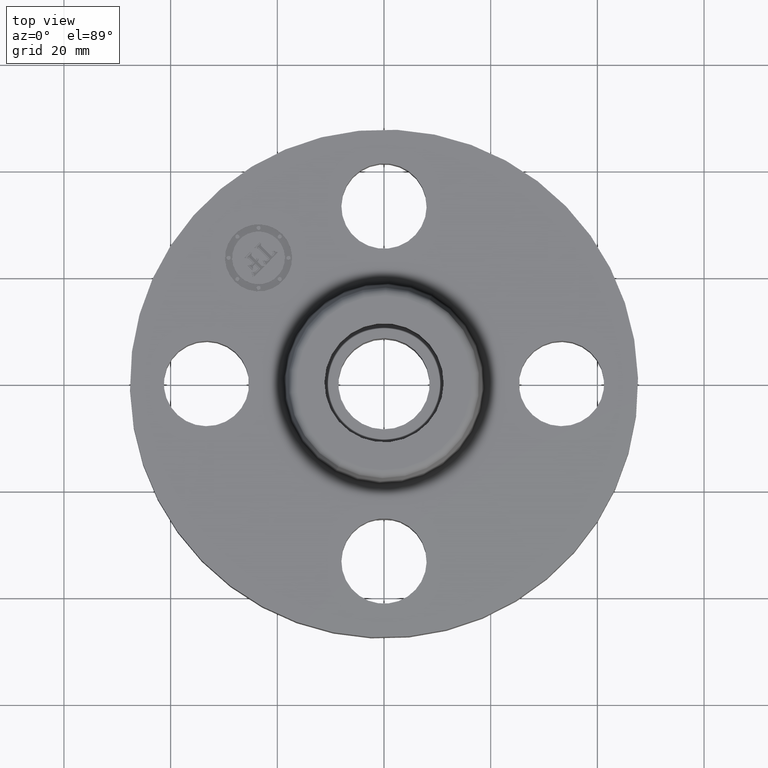
[diagram: clean part render]
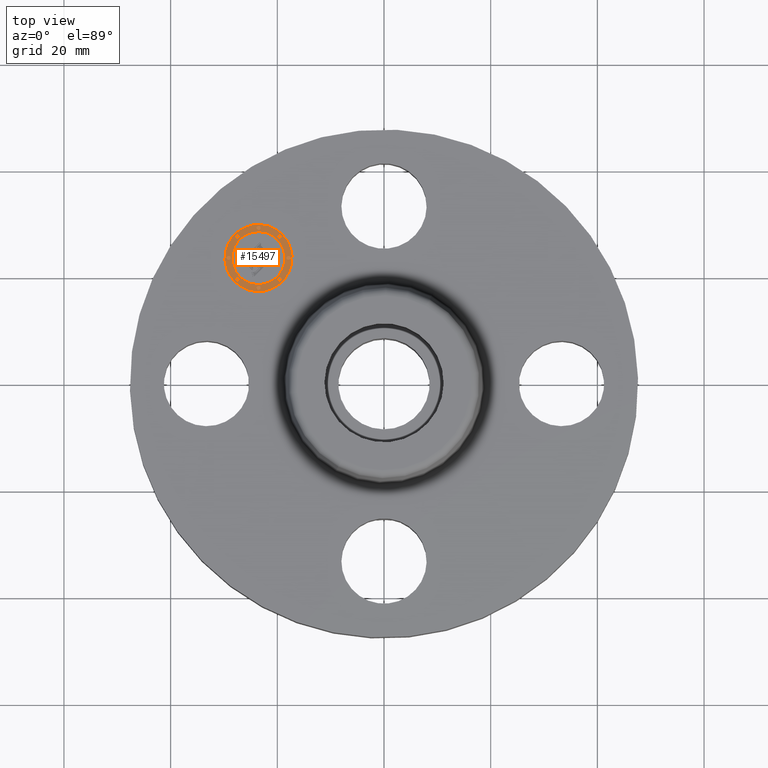
[diagram: same view with one face highlighted and labeled with its STEP entity id]
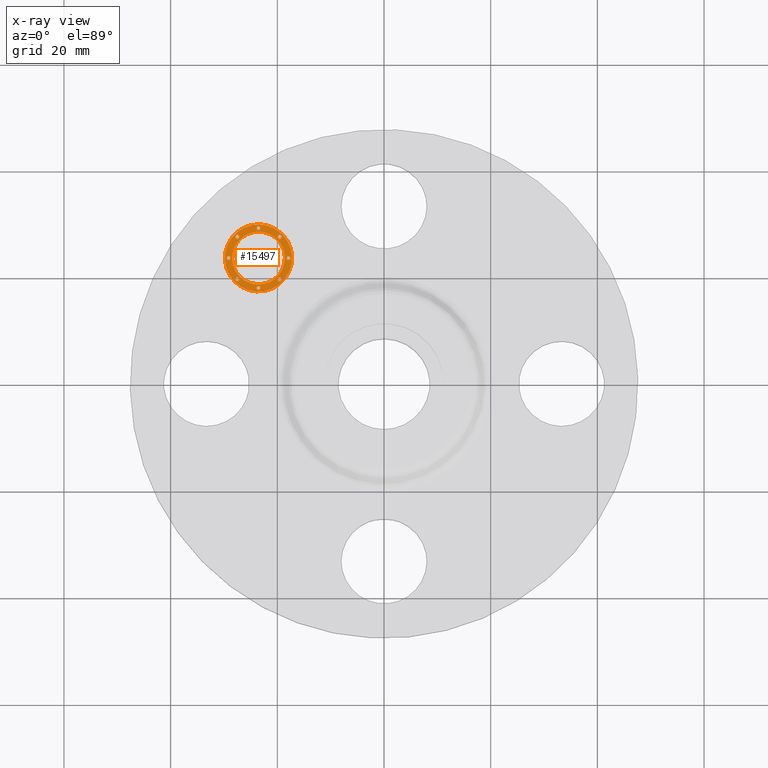
[diagram: x-ray of the same camera — body ghosted, the highlighted face saturated]
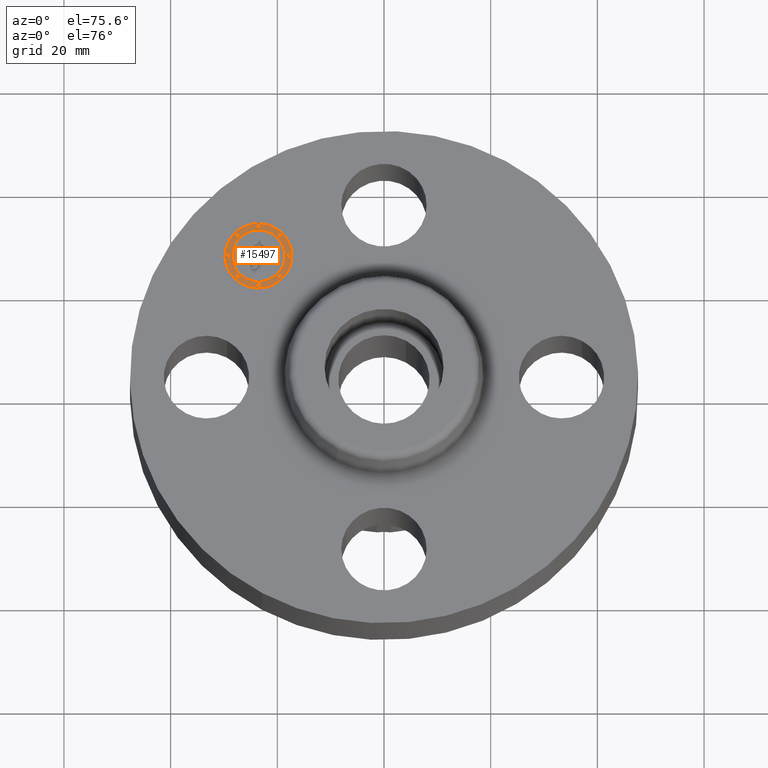
[diagram: same view with one face highlighted and labeled with its STEP entity id]
A machine part, top view. The second image highlights one B-rep face of the part: STEP entity #15497.
The next image is the same camera in x-ray: the body ghosted, the highlighted face saturated — about 0% of this face is hidden behind the body in this view.
A second angle (auxiliary view) of the same face is appended — the face is thin or edge-on in the first view.
In plain terms, the highlighted planar face has unit normal (0, -0, 1).
Its self-contained STEP definition (entity closure, byte-faithful):
#4148=AXIS2_PLACEMENT_3D('Plane Axis2P3D',#4145,#4146,#4147) ;
#15319=AXIS2_PLACEMENT_3D('Circle Axis2P3D',#15317,#15318,$) ;
#15328=AXIS2_PLACEMENT_3D('Circle Axis2P3D',#15326,#15327,$) ;
#15337=AXIS2_PLACEMENT_3D('Circle Axis2P3D',#15335,#15336,$) ;
#15346=AXIS2_PLACEMENT_3D('Circle Axis2P3D',#15344,#15345,$) ;
#15355=AXIS2_PLACEMENT_3D('Circle Axis2P3D',#15353,#15354,$) ;
#15364=AXIS2_PLACEMENT_3D('Circle Axis2P3D',#15362,#15363,$) ;
#15373=AXIS2_PLACEMENT_3D('Circle Axis2P3D',#15371,#15372,$) ;
#15382=AXIS2_PLACEMENT_3D('Circle Axis2P3D',#15380,#15381,$) ;
#15391=AXIS2_PLACEMENT_3D('Circle Axis2P3D',#15389,#15390,$) ;
#15400=AXIS2_PLACEMENT_3D('Circle Axis2P3D',#15398,#15399,$) ;
#15409=AXIS2_PLACEMENT_3D('Circle Axis2P3D',#15407,#15408,$) ;
#15418=AXIS2_PLACEMENT_3D('Circle Axis2P3D',#15416,#15417,$) ;
#15427=AXIS2_PLACEMENT_3D('Circle Axis2P3D',#15425,#15426,$) ;
#15436=AXIS2_PLACEMENT_3D('Circle Axis2P3D',#15434,#15435,$) ;
#15445=AXIS2_PLACEMENT_3D('Circle Axis2P3D',#15443,#15444,$) ;
#15454=AXIS2_PLACEMENT_3D('Circle Axis2P3D',#15452,#15453,$) ;
#15463=AXIS2_PLACEMENT_3D('Circle Axis2P3D',#15461,#15462,$) ;
#15472=AXIS2_PLACEMENT_3D('Circle Axis2P3D',#15470,#15471,$) ;
#15481=AXIS2_PLACEMENT_3D('Circle Axis2P3D',#15479,#15480,$) ;
#15490=AXIS2_PLACEMENT_3D('Circle Axis2P3D',#15488,#15489,$) ;
#4145=CARTESIAN_POINT('Axis2P3D Location',(0.,0.,0.485000000002)) ;
#15317=CARTESIAN_POINT('Axis2P3D Location',(-0.926309883358,0.926309883358,0.485000000002)) ;
#15321=CARTESIAN_POINT('Vertex',(-1.1013188117,0.751300955014,0.485000000002)) ;
#15323=CARTESIAN_POINT('Vertex',(-0.751300955014,1.1013188117,0.485000000002)) ;
#15326=CARTESIAN_POINT('Axis2P3D Location',(-0.926309883358,0.926309883358,0.485000000002)) ;
#15335=CARTESIAN_POINT('Axis2P3D Location',(-0.926309883358,0.926309883358,0.485000000002)) ;
#15339=CARTESIAN_POINT('Vertex',(-0.788424061026,1.06419570569,0.485000000002)) ;
#15341=CARTESIAN_POINT('Vertex',(-1.06419570569,0.788424061026,0.485000000002)) ;
#15344=CARTESIAN_POINT('Axis2P3D Location',(-0.926309883358,0.926309883358,0.485000000002)) ;
#15353=CARTESIAN_POINT('Axis2P3D Location',(-0.76986250802,0.76986250802,0.485000000002)) ;
#15357=CARTESIAN_POINT('Vertex',(-0.759255906302,0.780469109738,0.485000000002)) ;
#15359=CARTESIAN_POINT('Vertex',(-0.780469109738,0.759255906302,0.485000000002)) ;
#15362=CARTESIAN_POINT('Axis2P3D Location',(-0.76986250802,0.76986250802,0.485000000002)) ;
#15371=CARTESIAN_POINT('Axis2P3D Location',(-1.0827572587,0.76986250802,0.485000000002)) ;
#15375=CARTESIAN_POINT('Vertex',(-1.07215065698,0.780469109738,0.485000000002)) ;
#15377=CARTESIAN_POINT('Vertex',(-1.09336386041,0.759255906302,0.485000000002)) ;
#15380=CARTESIAN_POINT('Axis2P3D Location',(-1.0827572587,0.76986250802,0.485000000002)) ;
#15389=CARTESIAN_POINT('Axis2P3D Location',(-0.926309883358,0.705059883357,0.485000000002)) ;
#15393=CARTESIAN_POINT('Vertex',(-0.91570328164,0.715666485075,0.485000000002)) ;
#15395=CARTESIAN_POINT('Vertex',(-0.936916485076,0.694453281639,0.485000000002)) ;
#15398=CARTESIAN_POINT('Axis2P3D Location',(-0.926309883358,0.705059883357,0.485000000002)) ;
#15407=CARTESIAN_POINT('Axis2P3D Location',(-1.0827572587,1.0827572587,0.485000000002)) ;
#15411=CARTESIAN_POINT('Vertex',(-1.07215065698,1.09336386041,0.485000000002)) ;
#15413=CARTESIAN_POINT('Vertex',(-1.09336386041,1.07215065698,0.485000000002)) ;
#15416=CARTESIAN_POINT('Axis2P3D Location',(-1.0827572587,1.0827572587,0.485000000002)) ;
#15425=CARTESIAN_POINT('Axis2P3D Location',(-1.14755988336,0.926309883358,0.485000000002)) ;
#15429=CARTESIAN_POINT('Vertex',(-1.13695328164,0.936916485076,0.485000000002)) ;
#15431=CARTESIAN_POINT('Vertex',(-1.15816648508,0.91570328164,0.485000000002)) ;
#15434=CARTESIAN_POINT('Axis2P3D Location',(-1.14755988336,0.926309883358,0.485000000002)) ;
#15443=CARTESIAN_POINT('Axis2P3D Location',(-0.76986250802,1.0827572587,0.485000000002)) ;
#15447=CARTESIAN_POINT('Vertex',(-0.780469109738,1.07215065698,0.485000000002)) ;
#15449=CARTESIAN_POINT('Vertex',(-0.759255906302,1.09336386041,0.485000000002)) ;
#15452=CARTESIAN_POINT('Axis2P3D Location',(-0.76986250802,1.0827572587,0.485000000002)) ;
#15461=CARTESIAN_POINT('Axis2P3D Location',(-0.705059883357,0.926309883358,0.485000000002)) ;
#15465=CARTESIAN_POINT('Vertex',(-0.715666485075,0.91570328164,0.485000000002)) ;
#15467=CARTESIAN_POINT('Vertex',(-0.694453281639,0.936916485076,0.485000000002)) ;
#15470=CARTESIAN_POINT('Axis2P3D Location',(-0.705059883357,0.926309883358,0.485000000002)) ;
#15479=CARTESIAN_POINT('Axis2P3D Location',(-0.926309883358,1.14755988336,0.485000000002)) ;
#15483=CARTESIAN_POINT('Vertex',(-0.936916485076,1.13695328164,0.485000000002)) ;
#15485=CARTESIAN_POINT('Vertex',(-0.91570328164,1.15816648508,0.485000000002)) ;
#15488=CARTESIAN_POINT('Axis2P3D Location',(-0.926309883358,1.14755988336,0.485000000002)) ;
#4146=DIRECTION('Axis2P3D Direction',(0.,-0.,0.0393700787402)) ;
#4147=DIRECTION('Axis2P3D XDirection',(0.027838849653,0.027838849653,0.)) ;
#15318=DIRECTION('Axis2P3D Direction',(0.,-0.,0.0393700787402)) ;
#15327=DIRECTION('Axis2P3D Direction',(0.,-0.,0.0393700787402)) ;
#15336=DIRECTION('Axis2P3D Direction',(0.,-0.,0.0393700787402)) ;
#15345=DIRECTION('Axis2P3D Direction',(0.,-0.,0.0393700787402)) ;
#15354=DIRECTION('Axis2P3D Direction',(0.,-0.,0.0393700787402)) ;
#15363=DIRECTION('Axis2P3D Direction',(0.,-0.,0.0393700787402)) ;
#15372=DIRECTION('Axis2P3D Direction',(0.,-0.,0.0393700787402)) ;
#15381=DIRECTION('Axis2P3D Direction',(0.,-0.,0.0393700787402)) ;
#15390=DIRECTION('Axis2P3D Direction',(0.,-0.,0.0393700787402)) ;
#15399=DIRECTION('Axis2P3D Direction',(0.,-0.,0.0393700787402)) ;
#15408=DIRECTION('Axis2P3D Direction',(0.,-0.,0.0393700787402)) ;
#15417=DIRECTION('Axis2P3D Direction',(0.,-0.,0.0393700787402)) ;
#15426=DIRECTION('Axis2P3D Direction',(0.,-0.,0.0393700787402)) ;
#15435=DIRECTION('Axis2P3D Direction',(0.,-0.,0.0393700787402)) ;
#15444=DIRECTION('Axis2P3D Direction',(0.,-0.,0.0393700787402)) ;
#15453=DIRECTION('Axis2P3D Direction',(0.,-0.,0.0393700787402)) ;
#15462=DIRECTION('Axis2P3D Direction',(0.,-0.,0.0393700787402)) ;
#15471=DIRECTION('Axis2P3D Direction',(0.,-0.,0.0393700787402)) ;
#15480=DIRECTION('Axis2P3D Direction',(0.,-0.,0.0393700787402)) ;
#15489=DIRECTION('Axis2P3D Direction',(0.,-0.,0.0393700787402)) ;
#15332=ORIENTED_EDGE('',*,*,#15325,.T.) ;
#15333=ORIENTED_EDGE('',*,*,#15330,.T.) ;
#15350=ORIENTED_EDGE('',*,*,#15343,.F.) ;
#15351=ORIENTED_EDGE('',*,*,#15348,.F.) ;
#15368=ORIENTED_EDGE('',*,*,#15361,.F.) ;
#15369=ORIENTED_EDGE('',*,*,#15366,.F.) ;
#15386=ORIENTED_EDGE('',*,*,#15379,.F.) ;
#15387=ORIENTED_EDGE('',*,*,#15384,.F.) ;
#15404=ORIENTED_EDGE('',*,*,#15397,.F.) ;
#15405=ORIENTED_EDGE('',*,*,#15402,.F.) ;
#15422=ORIENTED_EDGE('',*,*,#15415,.F.) ;
#15423=ORIENTED_EDGE('',*,*,#15420,.F.) ;
#15440=ORIENTED_EDGE('',*,*,#15433,.F.) ;
#15441=ORIENTED_EDGE('',*,*,#15438,.F.) ;
#15458=ORIENTED_EDGE('',*,*,#15451,.F.) ;
#15459=ORIENTED_EDGE('',*,*,#15456,.F.) ;
#15476=ORIENTED_EDGE('',*,*,#15469,.F.) ;
#15477=ORIENTED_EDGE('',*,*,#15474,.F.) ;
#15494=ORIENTED_EDGE('',*,*,#15487,.F.) ;
#15495=ORIENTED_EDGE('',*,*,#15492,.F.) ;
#15352=FACE_BOUND('',#15349,.T.) ;
#15370=FACE_BOUND('',#15367,.T.) ;
#15388=FACE_BOUND('',#15385,.T.) ;
#15406=FACE_BOUND('',#15403,.T.) ;
#15424=FACE_BOUND('',#15421,.T.) ;
#15442=FACE_BOUND('',#15439,.T.) ;
#15460=FACE_BOUND('',#15457,.T.) ;
#15478=FACE_BOUND('',#15475,.T.) ;
#15496=FACE_BOUND('',#15493,.T.) ;
#15497=ADVANCED_FACE('PartBody',(#15334,#15352,#15370,#15388,#15406,#15424,#15442,#15460,#15478,#15496),#4149,.T.) ;
#15320=CIRCLE('generated circle',#15319,0.247500000001) ;
#15329=CIRCLE('generated circle',#15328,0.247500000001) ;
#15338=CIRCLE('generated circle',#15337,0.195000000001) ;
#15347=CIRCLE('generated circle',#15346,0.195000000001) ;
#15356=CIRCLE('generated circle',#15355,0.0150000000001) ;
#15365=CIRCLE('generated circle',#15364,0.0150000000001) ;
#15374=CIRCLE('generated circle',#15373,0.0150000000001) ;
#15383=CIRCLE('generated circle',#15382,0.0150000000001) ;
#15392=CIRCLE('generated circle',#15391,0.0150000000001) ;
#15401=CIRCLE('generated circle',#15400,0.0150000000001) ;
#15410=CIRCLE('generated circle',#15409,0.0150000000001) ;
#15419=CIRCLE('generated circle',#15418,0.0150000000001) ;
#15428=CIRCLE('generated circle',#15427,0.0150000000001) ;
#15437=CIRCLE('generated circle',#15436,0.0150000000001) ;
#15446=CIRCLE('generated circle',#15445,0.0150000000001) ;
#15455=CIRCLE('generated circle',#15454,0.0150000000001) ;
#15464=CIRCLE('generated circle',#15463,0.0150000000001) ;
#15473=CIRCLE('generated circle',#15472,0.0150000000001) ;
#15482=CIRCLE('generated circle',#15481,0.0150000000001) ;
#15491=CIRCLE('generated circle',#15490,0.0150000000001) ;
#15325=EDGE_CURVE('',#15322,#15324,#15320,.T.) ;
#15330=EDGE_CURVE('',#15324,#15322,#15329,.T.) ;
#15343=EDGE_CURVE('',#15340,#15342,#15338,.T.) ;
#15348=EDGE_CURVE('',#15342,#15340,#15347,.T.) ;
#15361=EDGE_CURVE('',#15358,#15360,#15356,.T.) ;
#15366=EDGE_CURVE('',#15360,#15358,#15365,.T.) ;
#15379=EDGE_CURVE('',#15376,#15378,#15374,.T.) ;
#15384=EDGE_CURVE('',#15378,#15376,#15383,.T.) ;
#15397=EDGE_CURVE('',#15394,#15396,#15392,.T.) ;
#15402=EDGE_CURVE('',#15396,#15394,#15401,.T.) ;
#15415=EDGE_CURVE('',#15412,#15414,#15410,.T.) ;
#15420=EDGE_CURVE('',#15414,#15412,#15419,.T.) ;
#15433=EDGE_CURVE('',#15430,#15432,#15428,.T.) ;
#15438=EDGE_CURVE('',#15432,#15430,#15437,.T.) ;
#15451=EDGE_CURVE('',#15448,#15450,#15446,.T.) ;
#15456=EDGE_CURVE('',#15450,#15448,#15455,.T.) ;
#15469=EDGE_CURVE('',#15466,#15468,#15464,.T.) ;
#15474=EDGE_CURVE('',#15468,#15466,#15473,.T.) ;
#15487=EDGE_CURVE('',#15484,#15486,#15482,.T.) ;
#15492=EDGE_CURVE('',#15486,#15484,#15491,.T.) ;
#15331=EDGE_LOOP('',(#15332,#15333)) ;
#15349=EDGE_LOOP('',(#15350,#15351)) ;
#15367=EDGE_LOOP('',(#15368,#15369)) ;
#15385=EDGE_LOOP('',(#15386,#15387)) ;
#15403=EDGE_LOOP('',(#15404,#15405)) ;
#15421=EDGE_LOOP('',(#15422,#15423)) ;
#15439=EDGE_LOOP('',(#15440,#15441)) ;
#15457=EDGE_LOOP('',(#15458,#15459)) ;
#15475=EDGE_LOOP('',(#15476,#15477)) ;
#15493=EDGE_LOOP('',(#15494,#15495)) ;
#15334=FACE_OUTER_BOUND('',#15331,.T.) ;
#4149=PLANE('',#4148) ;
#15322=VERTEX_POINT('',#15321) ;
#15324=VERTEX_POINT('',#15323) ;
#15340=VERTEX_POINT('',#15339) ;
#15342=VERTEX_POINT('',#15341) ;
#15358=VERTEX_POINT('',#15357) ;
#15360=VERTEX_POINT('',#15359) ;
#15376=VERTEX_POINT('',#15375) ;
#15378=VERTEX_POINT('',#15377) ;
#15394=VERTEX_POINT('',#15393) ;
#15396=VERTEX_POINT('',#15395) ;
#15412=VERTEX_POINT('',#15411) ;
#15414=VERTEX_POINT('',#15413) ;
#15430=VERTEX_POINT('',#15429) ;
#15432=VERTEX_POINT('',#15431) ;
#15448=VERTEX_POINT('',#15447) ;
#15450=VERTEX_POINT('',#15449) ;
#15466=VERTEX_POINT('',#15465) ;
#15468=VERTEX_POINT('',#15467) ;
#15484=VERTEX_POINT('',#15483) ;
#15486=VERTEX_POINT('',#15485) ;